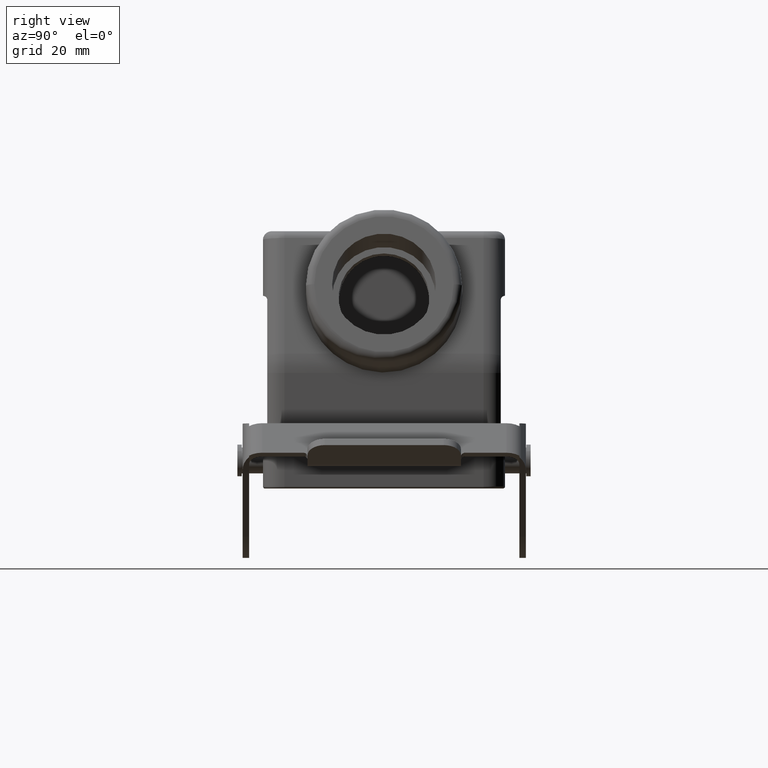
[diagram: clean part render]
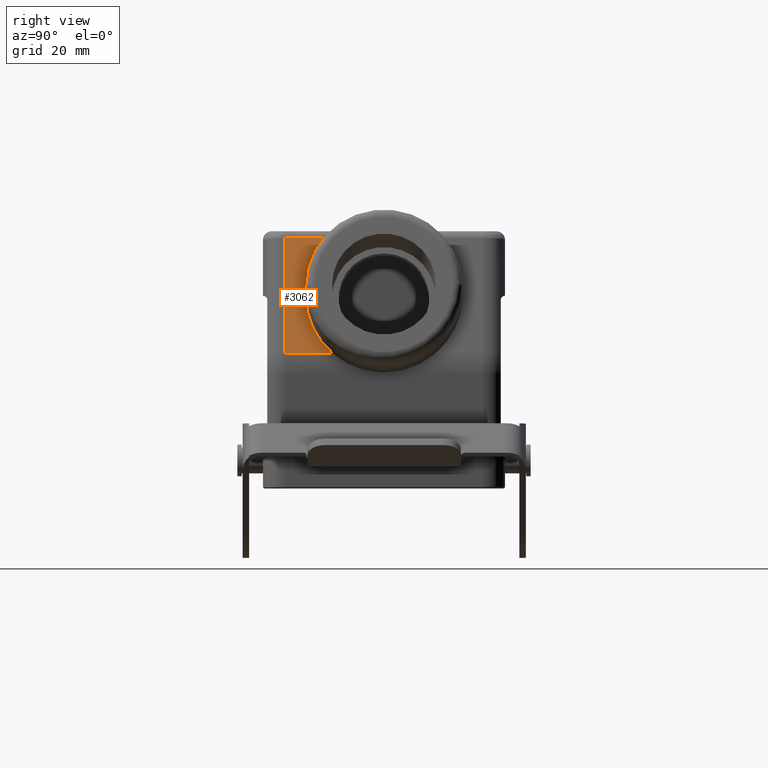
[diagram: same view with one face highlighted and labeled with its STEP entity id]
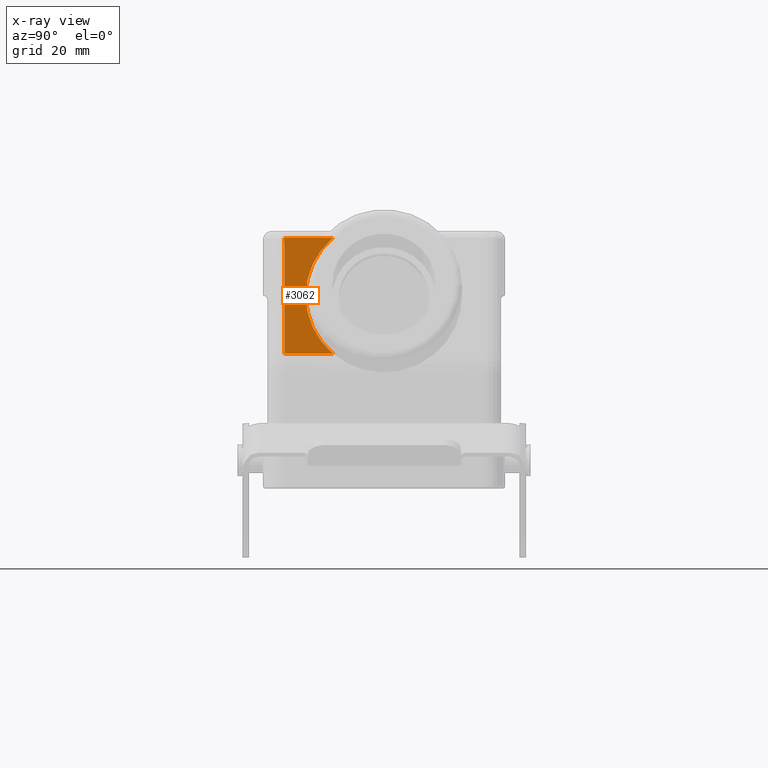
[diagram: x-ray of the same camera — body ghosted, the highlighted face saturated]
A machine part, right view. The second image highlights one B-rep face of the part: STEP entity #3062.
The next image is the same camera in x-ray: the body ghosted, the highlighted face saturated — about 0% of this face is hidden behind the body in this view.
In plain terms, the highlighted planar face has unit normal (0.9747, 0, 0.2237).
Its self-contained STEP definition (entity closure, byte-faithful):
#137=DIRECTION('',(-4.316255923004E-12,-1.E0,2.677082896141E-12));
#138=VECTOR('',#137,1.117935498873E1);
#139=CARTESIAN_POINT('',(3.435633790983E1,-1.182064501123E1,5.794738482144E1));
#140=LINE('',#139,#138);
#155=CARTESIAN_POINT('',(3.742249388399E1,0.E0,4.458770521973E1));
#156=DIRECTION('',(9.746597895606E-1,0.E0,2.236924107201E-1));
#157=DIRECTION('',(-1.694008825514E-1,-6.530743100131E-1,7.381038453983E-1));
#158=AXIS2_PLACEMENT_3D('',#155,#156,#157);
#160=CARTESIAN_POINT('',(3.742249388399E1,0.E0,4.458770521973E1));
#161=DIRECTION('',(9.746597895606E-1,0.E0,2.236924107201E-1));
#162=DIRECTION('',(1.695881004687E-13,-1.E0,-7.391999842189E-13));
#163=AXIS2_PLACEMENT_3D('',#160,#161,#162);
#506=DIRECTION('',(3.598708726943E-12,1.E0,1.567854771414E-12));
#507=VECTOR('',#506,1.120296136366E1);
#508=CARTESIAN_POINT('',(4.049319579118E1,-2.299999999996E1,3.120821833826E1));
#509=LINE('',#508,#507);
#641=DIRECTION('',(2.236924107192E-1,-9.595853303895E-14,-9.746597895608E-1));
#642=VECTOR('',#641,2.743435891129E1);
#643=CARTESIAN_POINT('',(3.435633790978E1,-2.299999999996E1,5.794738482147E1));
#644=LINE('',#643,#642);
#2800=CARTESIAN_POINT('',(3.435633790983E1,-1.182064501123E1,5.794738482144E1));
#2801=CARTESIAN_POINT('',(3.435633790978E1,-2.299999999996E1,5.794738482147E1));
#2802=VERTEX_POINT('',#2800);
#2803=VERTEX_POINT('',#2801);
#2814=CARTESIAN_POINT('',(3.742249388400E1,-1.81E1,4.458770521972E1));
#2815=VERTEX_POINT('',#2814);
#2816=CARTESIAN_POINT('',(4.049319579118E1,-2.299999999996E1,3.120821833826E1));
#2817=VERTEX_POINT('',#2816);
#2818=CARTESIAN_POINT('',(4.049319579122E1,-1.179703863630E1,3.120821833828E1));
#2819=VERTEX_POINT('',#2818);
#3046=CARTESIAN_POINT('',(3.742476685053E1,-1.739851931815E1,4.457780157985E1));
#3047=DIRECTION('',(9.746597895609E-1,0.E0,2.236924107186E-1));
#3048=DIRECTION('',(2.236924107186E-1,0.E0,-9.746597895609E-1));
#3049=AXIS2_PLACEMENT_3D('',#3046,#3047,#3048);
#3050=PLANE('',#3049);
#3052=ORIENTED_EDGE('',*,*,#3051,.T.);
#3054=ORIENTED_EDGE('',*,*,#3053,.T.);
#3056=ORIENTED_EDGE('',*,*,#3055,.F.);
#3058=ORIENTED_EDGE('',*,*,#3057,.F.);
#3059=ORIENTED_EDGE('',*,*,#3036,.F.);
#3060=EDGE_LOOP('',(#3052,#3054,#3056,#3058,#3059));
#3061=FACE_OUTER_BOUND('',#3060,.F.);
#3062=ADVANCED_FACE('',(#3061),#3050,.T.);
#159=CIRCLE('',#158,1.81E1);
#164=CIRCLE('',#163,1.81E1);
#3036=EDGE_CURVE('',#2802,#2803,#140,.T.);
#3051=EDGE_CURVE('',#2802,#2815,#159,.T.);
#3053=EDGE_CURVE('',#2815,#2819,#164,.T.);
#3055=EDGE_CURVE('',#2817,#2819,#509,.T.);
#3057=EDGE_CURVE('',#2803,#2817,#644,.T.);